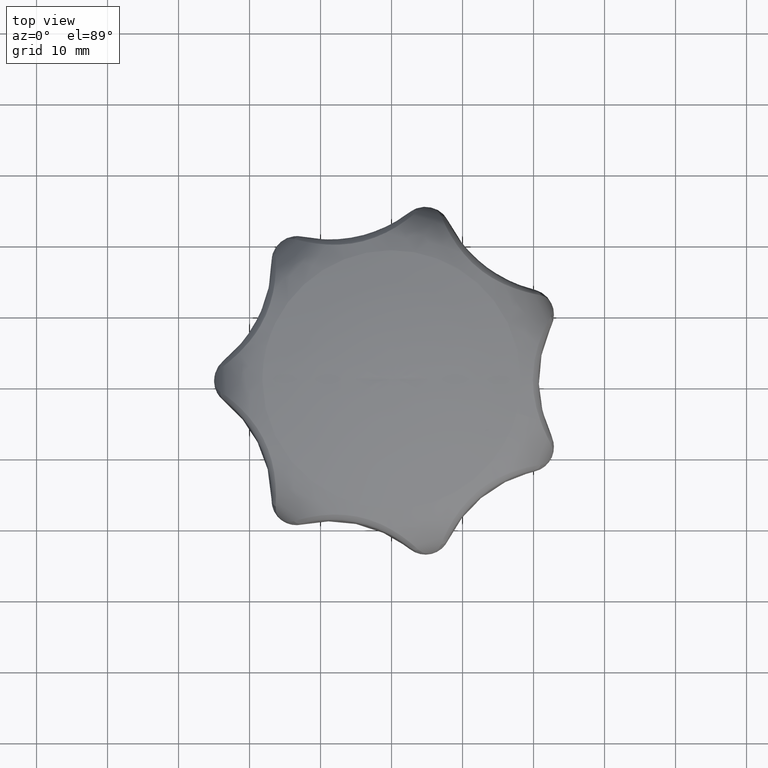
[diagram: clean part render]
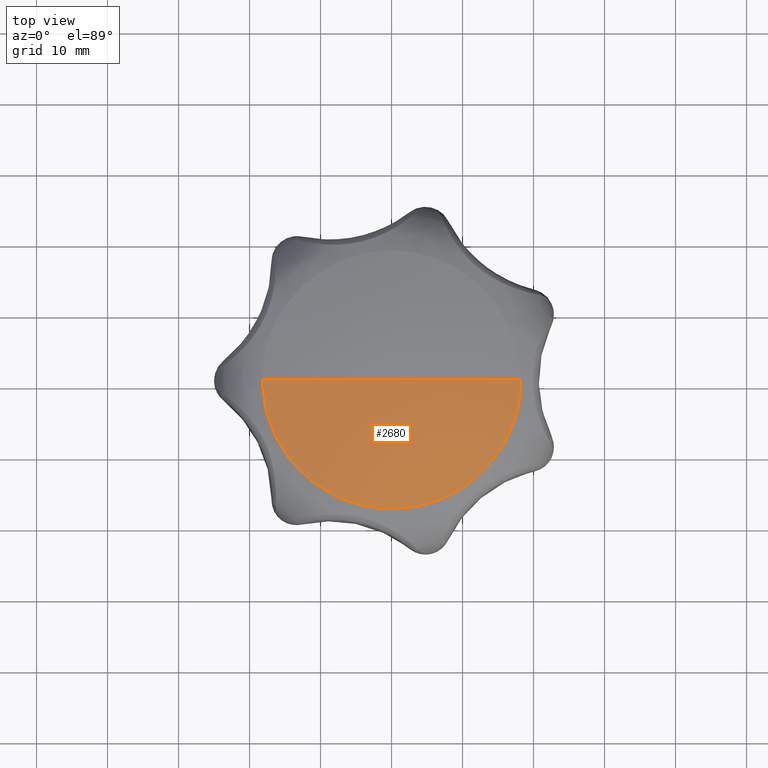
[diagram: same view with one face highlighted and labeled with its STEP entity id]
A machine part, top view. The second image highlights one B-rep face of the part: STEP entity #2680.
In plain terms, the highlighted face is a freeform B-spline surface patch.
Its self-contained STEP definition (entity closure, byte-faithful):
#2580=CARTESIAN_POINT('',(19.122076079846462,0.0,29.625689618417852));
#2581=CARTESIAN_POINT('',(9.726091800278685,0.0,32.142664848324529));
#2582=CARTESIAN_POINT('',(0.0,0.0,31.991591414524141));
#2583=CARTESIAN_POINT('',(19.122076079846444,-19.122076079846490,29.625689618417859));
#2584=CARTESIAN_POINT('',(9.726091800278665,-9.726091800278716,32.142664848324536));
#2585=CARTESIAN_POINT('',(-2.970714E-014,-2.970714E-014,31.991591414524134));
#2586=CARTESIAN_POINT('',(-2.970714E-014,-19.122076079846487,29.625689618417852));
#2587=CARTESIAN_POINT('',(-2.970714E-014,-9.726091800278715,32.142664848324529));
#2588=CARTESIAN_POINT('',(-2.970714E-014,-2.970714E-014,31.991591414524141));
#2589=CARTESIAN_POINT('',(-19.122076079846519,-19.122076079846472,29.625689618417859));
#2590=CARTESIAN_POINT('',(-9.726091800278747,-9.726091800278695,32.142664848324536));
#2591=CARTESIAN_POINT('',(-5.941428E-014,0.0,31.991591414524134));
#2592=CARTESIAN_POINT('',(-19.122076079846515,0.0,29.625689618417852));
#2593=CARTESIAN_POINT('',(-9.726091800278745,0.0,32.142664848324529));
#2594=CARTESIAN_POINT('',(-5.941428E-014,0.0,31.991591414524141));
#2602=(BOUNDED_SURFACE()B_SPLINE_SURFACE(2,2,((#2580,#2583,#2586,#2589,#2592),(#2581,#2584,#2587,#2590,#2593),(#2582,#2585,#2588,#2591,#2594)),.UNSPECIFIED.,.F.,.F.,.U.)B_SPLINE_SURFACE_WITH_KNOTS((3,3),(3,2,3),(0.911163057479262,1.0),(0.500000000000000,0.750000000000000,1.0),.UNSPECIFIED.)GEOMETRIC_REPRESENTATION_ITEM()RATIONAL_B_SPLINE_SURFACE(((0.946603956474527,0.669350076721153,0.946603956474527,0.669350076721153,0.946603956474527),(0.963601341688515,0.681369043068405,0.963601341688515,0.681369043068405,0.963601341688515),(1.0,0.707106781186548,1.0,0.707106781186548,1.0)))REPRESENTATION_ITEM('')SURFACE());
#2603=CARTESIAN_POINT('',(18.211198396118341,0.0,29.863114584089448));
#2604=VERTEX_POINT('',#2603);
#2605=CARTESIAN_POINT('',(0.0,0.0,31.991591414524141));
#2606=VERTEX_POINT('',#2605);
#2607=CARTESIAN_POINT('',(18.211198396118338,0.0,29.863114584089445));
#2608=CARTESIAN_POINT('',(9.246771467408975,0.0,32.135219661700354));
#2609=CARTESIAN_POINT('',(2.970714E-014,0.0,31.991591414524141));
#2617=(BOUNDED_CURVE()B_SPLINE_CURVE(2,(#2607,#2608,#2609),.UNSPECIFIED.,.F.,.U.)B_SPLINE_CURVE_WITH_KNOTS((3,3),(0.915389337044790,1.0),.UNSPECIFIED.)CURVE()GEOMETRIC_REPRESENTATION_ITEM()RATIONAL_B_SPLINE_CURVE((0.948265114478061,0.965332951326010,1.0))REPRESENTATION_ITEM(''));
#2618=EDGE_CURVE('',#2604,#2606,#2617,.T.);
#2619=ORIENTED_EDGE('',*,*,#2618,.T.);
#2620=CARTESIAN_POINT('',(-18.211198396059860,0.0,29.863114584104281));
#2621=VERTEX_POINT('',#2620);
#2622=CARTESIAN_POINT('',(-18.211198396059856,0.0,29.863114584104281));
#2623=CARTESIAN_POINT('',(-9.246771467378283,0.0,32.135219661699885));
#2624=CARTESIAN_POINT('',(-2.970714E-014,0.0,31.991591414524141));
#2632=(BOUNDED_CURVE()B_SPLINE_CURVE(2,(#2622,#2623,#2624),.UNSPECIFIED.,.F.,.U.)B_SPLINE_CURVE_WITH_KNOTS((3,3),(0.915389337045061,1.0),.UNSPECIFIED.)CURVE()GEOMETRIC_REPRESENTATION_ITEM()RATIONAL_B_SPLINE_CURVE((0.948265114478170,0.965332951326121,1.0))REPRESENTATION_ITEM(''));
#2633=EDGE_CURVE('',#2621,#2606,#2632,.T.);
#2634=ORIENTED_EDGE('',*,*,#2633,.F.);
#2635=CARTESIAN_POINT('',(17.580756814753119,-4.750236491872775,29.863114550706520));
#2636=VERTEX_POINT('',#2635);
#2637=CARTESIAN_POINT('',(-18.211198396059860,0.0,29.863114584104281));
#2638=CARTESIAN_POINT('',(-18.211516329315259,-1.398896049869498,29.863114583934529));
#2639=CARTESIAN_POINT('',(-17.950374814578069,-3.650574771479668,29.863114583420760));
#2640=CARTESIAN_POINT('',(-17.018342321434780,-6.656062510038481,29.863114582201192));
#2641=CARTESIAN_POINT('',(-15.960239143000910,-8.880324999281321,29.863114580959540));
#2642=CARTESIAN_POINT('',(-14.749988885241009,-10.743311854074401,29.863114579623829));
#2643=CARTESIAN_POINT('',(-13.322276026785479,-12.488437784294360,29.863114578101161));
#2644=CARTESIAN_POINT('',(-11.509430594723741,-14.206823507856610,29.863114576233009));
#2645=CARTESIAN_POINT('',(-9.199641110808738,-15.800846492206171,29.863114573916590));
#2646=CARTESIAN_POINT('',(-6.919092067964281,-16.901048255256590,29.863114571694709));
#2647=CARTESIAN_POINT('',(-4.648953215504444,-17.653913710057441,29.863114569521230));
#2648=CARTESIAN_POINT('',(-2.637826267880038,-18.060320905441309,29.863114567625111));
#2649=CARTESIAN_POINT('',(-0.629676804196457,-18.229719590579261,29.863114565766011));
#2650=CARTESIAN_POINT('',(1.385699703972204,-18.201164044614309,29.863114563920139));
#2651=CARTESIAN_POINT('',(3.419557273420480,-17.930660145993020,29.863114562088558));
#2652=CARTESIAN_POINT('',(5.604054126050061,-17.372300193531778,29.863114560153061));
#2653=CARTESIAN_POINT('',(7.582068218799322,-16.609025506092220,29.863114558434638));
#2654=CARTESIAN_POINT('',(9.449536422303703,-15.608275124650159,29.863114556841420));
#2655=CARTESIAN_POINT('',(11.255649036221710,-14.376077136378999,29.863114555335411));
#2656=CARTESIAN_POINT('',(12.872593826551009,-12.951131152722620,29.863114554026239));
#2657=CARTESIAN_POINT('',(14.249931590213871,-11.386872123715220,29.863114552953370));
#2658=CARTESIAN_POINT('',(15.366815220480079,-9.834282019738524,29.863114552117771));
#2659=CARTESIAN_POINT('',(16.588824497315361,-7.698302571507760,29.863114551260171));
#2660=CARTESIAN_POINT('',(17.269407768913101,-5.903096603080087,29.863114550847001));
#2661=CARTESIAN_POINT('',(17.580756814753119,-4.750236491872775,29.863114550706520));
#2662=B_SPLINE_CURVE_WITH_KNOTS('',3,(#2637,#2638,#2639,#2640,#2641,#2642,#2643,#2644,#2645,#2646,#2647,#2648,#2649,#2650,#2651,#2652,#2653,#2654,#2655,#2656,#2657,#2658,#2659,#2660,#2661),.UNSPECIFIED.,.F.,.U.,(4,1,1,1,1,1,1,1,1,1,1,1,1,1,1,1,1,1,1,1,1,1,4),(0.000000037269729,4.196594223927534,6.755516905200786,9.416761802344858,11.566254312756660,13.408676870647399,16.172310196741329,19.038299768296611,21.801908148565030,23.746707628870048,26.203229649756292,27.943286137559699,29.785659414938319,32.242232293703317,34.084629275444932,36.541185072254258,38.588313993134513,40.430737172170559,43.092002139929733,45.036771799684232,46.674478535397299,48.823962723628753,52.406420456944574),.UNSPECIFIED.);
#2663=EDGE_CURVE('',#2621,#2636,#2662,.T.);
#2664=ORIENTED_EDGE('',*,*,#2663,.T.);
#2665=CARTESIAN_POINT('',(17.580756814753116,-4.750236491872775,29.863114550706520));
#2666=CARTESIAN_POINT('',(18.211198392261000,-2.416953716395857,29.863114567397851));
#2667=CARTESIAN_POINT('',(18.211198396118341,0.0,29.863114584089448));
#2675=(BOUNDED_CURVE()B_SPLINE_CURVE(2,(#2665,#2666,#2667),.UNSPECIFIED.,.F.,.U.)B_SPLINE_CURVE_WITH_KNOTS((3,3),(0.911044433695594,1.0),.UNSPECIFIED.)CURVE()GEOMETRIC_REPRESENTATION_ITEM()RATIONAL_B_SPLINE_CURVE((0.914323601127632,0.947891035707458,1.0))REPRESENTATION_ITEM(''));
#2676=EDGE_CURVE('',#2636,#2604,#2675,.T.);
#2677=ORIENTED_EDGE('',*,*,#2676,.T.);
#2678=EDGE_LOOP('',(#2619,#2634,#2664,#2677));
#2679=FACE_OUTER_BOUND('',#2678,.T.);
#2680=ADVANCED_FACE('',(#2679),#2602,.T.);